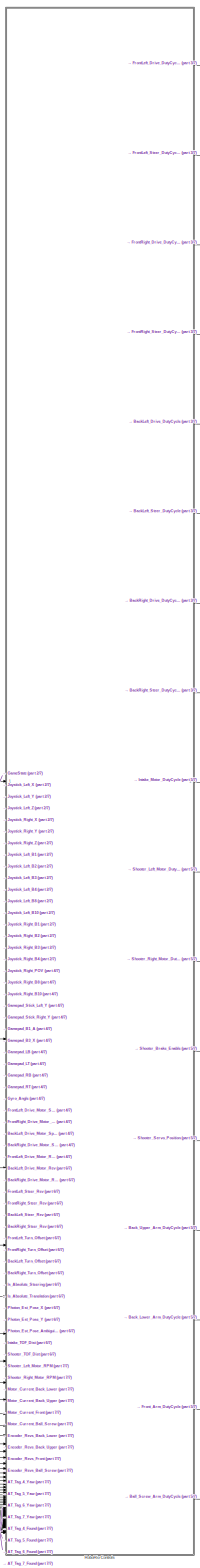
[diagram: root canvas - part 1/7, center side, full height]
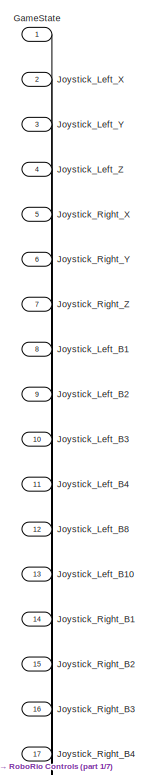
[diagram: root canvas - part 2/7, top left region]
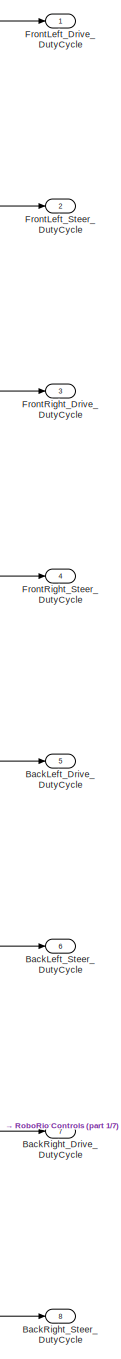
[diagram: root canvas - part 3/7, top right region]
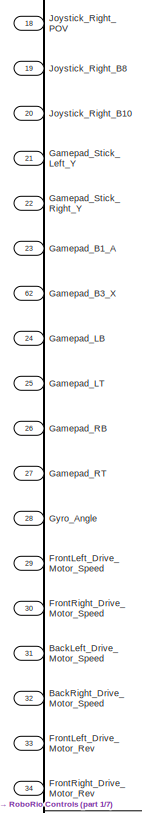
[diagram: root canvas - part 4/7, middle left region]
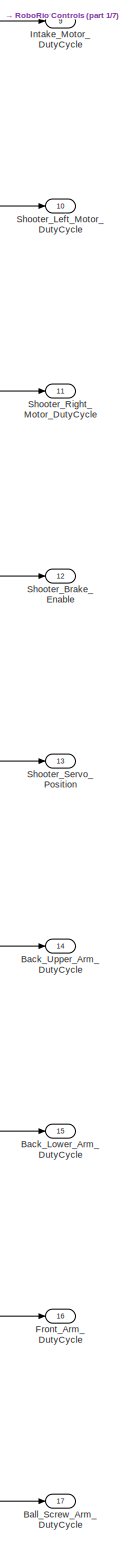
[diagram: root canvas - part 5/7, bottom right region]
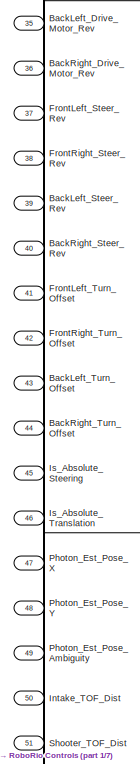
[diagram: root canvas - part 6/7, middle left region]
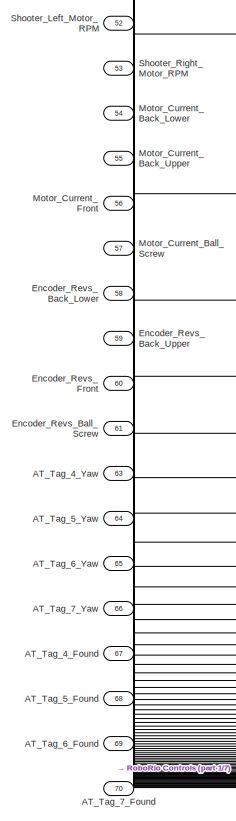
[diagram: root canvas - part 7/7, bottom left region]
MODEL slx_de5d0584c826
KIND model
CONFIG AbsTol = auto
CONFIG EnableMultiTasking = off
CONFIG FixedStep = t_sample
CONFIG MaxStep = auto
CONFIG MinStep = auto
CONFIG RelTol = 1e-3
CONFIG SampleTimeConstraint = Unconstrained
CONFIG SolverName = FixedStepDiscrete
CONFIG StartTime = 0.0
CONFIG StopTime = inf
BLOCK [Inport] AT_Tag_4_Found
  Port = 67
BLOCK [Inport] AT_Tag_4_Yaw
  Port = 63
BLOCK [Inport] AT_Tag_5_Found
  Port = 68
BLOCK [Inport] AT_Tag_5_Yaw
  Port = 64
BLOCK [Inport] AT_Tag_6_Found
  Port = 69
BLOCK [Inport] AT_Tag_6_Yaw
  Port = 65
BLOCK [Inport] AT_Tag_7_Found
  Port = 70
BLOCK [Inport] AT_Tag_7_Yaw
  Port = 66
BLOCK [Outport] BackLeft_Drive_DutyCycle
  Port = 5
BLOCK [Inport] BackLeft_Drive_Motor_Rev
  Port = 35
BLOCK [Inport] BackLeft_Drive_Motor_Speed
  Port = 31
BLOCK [Outport] BackLeft_Steer_DutyCycle
  Port = 6
BLOCK [Inport] BackLeft_Steer_Rev
  Port = 39
BLOCK [Inport] BackLeft_Turn_Offset
  Port = 43
BLOCK [Outport] BackRight_Drive_DutyCycle
  Port = 7
BLOCK [Inport] BackRight_Drive_Motor_Rev
  Port = 36
BLOCK [Inport] BackRight_Drive_Motor_Speed
  Port = 32
BLOCK [Outport] BackRight_Steer_DutyCycle
  Port = 8
BLOCK [Inport] BackRight_Steer_Rev
  Port = 40
BLOCK [Inport] BackRight_Turn_Offset
  Port = 44
BLOCK [Outport] Back_Lower_Arm_DutyCycle
  Port = 15
BLOCK [Outport] Back_Upper_Arm_DutyCycle
  Port = 14
BLOCK [Outport] Ball_Screw_Arm_DutyCycle
  Port = 17
BLOCK [Inport] Encoder_Revs_Back_Lower
  Port = 58
BLOCK [Inport] Encoder_Revs_Back_Upper
  Port = 59
BLOCK [Inport] Encoder_Revs_Ball_Screw
  Port = 61
BLOCK [Inport] Encoder_Revs_Front
  Port = 60
BLOCK [Outport] FrontLeft_Drive_DutyCycle
BLOCK [Inport] FrontLeft_Drive_Motor_Rev
  Port = 33
BLOCK [Inport] FrontLeft_Drive_Motor_Speed
  Port = 29
BLOCK [Outport] FrontLeft_Steer_DutyCycle
  Port = 2
BLOCK [Inport] FrontLeft_Steer_Rev
  Port = 37
BLOCK [Inport] FrontLeft_Turn_Offset
  Port = 41
BLOCK [Outport] FrontRight_Drive_DutyCycle
  Port = 3
BLOCK [Inport] FrontRight_Drive_Motor_Rev
  Port = 34
BLOCK [Inport] FrontRight_Drive_Motor_Speed
  Port = 30
BLOCK [Outport] FrontRight_Steer_DutyCycle
  Port = 4
BLOCK [Inport] FrontRight_Steer_Rev
  Port = 38
BLOCK [Inport] FrontRight_Turn_Offset
  Port = 42
BLOCK [Outport] Front_Arm_DutyCycle
  Port = 16
BLOCK [Inport] GameState
BLOCK [Inport] Gamepad_B1_A
  Port = 23
BLOCK [Inport] Gamepad_B3_X
  Port = 62
BLOCK [Inport] Gamepad_LB
  Port = 24
BLOCK [Inport] Gamepad_LT
  Port = 25
BLOCK [Inport] Gamepad_RB
  Port = 26
BLOCK [Inport] Gamepad_RT
  Port = 27
BLOCK [Inport] Gamepad_Stick_Left_Y
  Port = 21
BLOCK [Inport] Gamepad_Stick_Right_Y
  Port = 22
BLOCK [Inport] Gyro_Angle
  Port = 28
BLOCK [Outport] Intake_Motor_DutyCycle
  Port = 9
BLOCK [Inport] Intake_TOF_Dist
  Port = 50
BLOCK [Inport] Is_Absolute_Steering
  Port = 45
BLOCK [Inport] Is_Absolute_Translation
  Port = 46
BLOCK [Inport] Joystick_Left_B1
  Port = 8
BLOCK [Inport] Joystick_Left_B10
  Port = 13
BLOCK [Inport] Joystick_Left_B2
  Port = 9
BLOCK [Inport] Joystick_Left_B3
  Port = 10
BLOCK [Inport] Joystick_Left_B4
  Port = 11
BLOCK [Inport] Joystick_Left_B8
  Port = 12
BLOCK [Inport] Joystick_Left_X
  Port = 2
BLOCK [Inport] Joystick_Left_Y
  Port = 3
BLOCK [Inport] Joystick_Left_Z
  Port = 4
BLOCK [Inport] Joystick_Right_B1
  Port = 14
BLOCK [Inport] Joystick_Right_B10
  Port = 20
BLOCK [Inport] Joystick_Right_B2
  Port = 15
BLOCK [Inport] Joystick_Right_B3
  Port = 16
BLOCK [Inport] Joystick_Right_B4
  Port = 17
BLOCK [Inport] Joystick_Right_B8
  Port = 19
BLOCK [Inport] Joystick_Right_POV
  Port = 18
BLOCK [Inport] Joystick_Right_X
  Port = 5
BLOCK [Inport] Joystick_Right_Y
  Port = 6
BLOCK [Inport] Joystick_Right_Z
  Port = 7
BLOCK [Inport] Motor_Current_Back_Lower
  Port = 54
BLOCK [Inport] Motor_Current_Back_Upper
  Port = 55
BLOCK [Inport] Motor_Current_Ball_Screw
  Port = 57
BLOCK [Inport] Motor_Current_Front
  Port = 56
BLOCK [Inport] Photon_Est_Pose_Ambiguity
  Port = 49
BLOCK [Inport] Photon_Est_Pose_X
  Port = 47
BLOCK [Inport] Photon_Est_Pose_Y
  Port = 48
BLOCK [SubSystem] RoboRio Controls
  ReferencedSubsystem = RoboRio_Controls_sub
BLOCK [Outport] Shooter_Brake_Enable
  Port = 12
BLOCK [Outport] Shooter_Left_Motor_DutyCycle
  Port = 10
BLOCK [Inport] Shooter_Left_Motor_RPM
  Port = 52
BLOCK [Outport] Shooter_Right_Motor_DutyCycle
  Port = 11
BLOCK [Inport] Shooter_Right_Motor_RPM
  Port = 53
BLOCK [Outport] Shooter_Servo_Position
  Port = 13
BLOCK [Inport] Shooter_TOF_Dist
  Port = 51
LINE AT_Tag_4_Found:1 -> RoboRio Controls:67
LINE AT_Tag_4_Yaw:1 -> RoboRio Controls:63
LINE AT_Tag_5_Found:1 -> RoboRio Controls:68
LINE AT_Tag_5_Yaw:1 -> RoboRio Controls:64
LINE AT_Tag_6_Found:1 -> RoboRio Controls:69
LINE AT_Tag_6_Yaw:1 -> RoboRio Controls:65
LINE AT_Tag_7_Found:1 -> RoboRio Controls:70
LINE AT_Tag_7_Yaw:1 -> RoboRio Controls:66
LINE BackLeft_Drive_Motor_Rev:1 -> RoboRio Controls:36
LINE BackLeft_Drive_Motor_Speed:1 -> RoboRio Controls:32
LINE BackLeft_Steer_Rev:1 -> RoboRio Controls:40
LINE BackLeft_Turn_Offset:1 -> RoboRio Controls:44
LINE BackRight_Drive_Motor_Rev:1 -> RoboRio Controls:37
LINE BackRight_Drive_Motor_Speed:1 -> RoboRio Controls:33
LINE BackRight_Steer_Rev:1 -> RoboRio Controls:41
LINE BackRight_Turn_Offset:1 -> RoboRio Controls:45
LINE Encoder_Revs_Back_Lower:1 -> RoboRio Controls:59
LINE Encoder_Revs_Back_Upper:1 -> RoboRio Controls:60
LINE Encoder_Revs_Ball_Screw:1 -> RoboRio Controls:62
LINE Encoder_Revs_Front:1 -> RoboRio Controls:61
LINE FrontLeft_Drive_Motor_Rev:1 -> RoboRio Controls:34
LINE FrontLeft_Drive_Motor_Speed:1 -> RoboRio Controls:30
LINE FrontLeft_Steer_Rev:1 -> RoboRio Controls:38
LINE FrontLeft_Turn_Offset:1 -> RoboRio Controls:42
LINE FrontRight_Drive_Motor_Rev:1 -> RoboRio Controls:35
LINE FrontRight_Drive_Motor_Speed:1 -> RoboRio Controls:31
LINE FrontRight_Steer_Rev:1 -> RoboRio Controls:39
LINE FrontRight_Turn_Offset:1 -> RoboRio Controls:43
LINE GameState:1 -> RoboRio Controls:1
LINE Gamepad_B1_A:1 -> RoboRio Controls:23
LINE Gamepad_B3_X:1 -> RoboRio Controls:24
LINE Gamepad_LB:1 -> RoboRio Controls:25
LINE Gamepad_LT:1 -> RoboRio Controls:26
LINE Gamepad_RB:1 -> RoboRio Controls:27
LINE Gamepad_RT:1 -> RoboRio Controls:28
LINE Gamepad_Stick_Left_Y:1 -> RoboRio Controls:21
LINE Gamepad_Stick_Right_Y:1 -> RoboRio Controls:22
LINE Gyro_Angle:1 -> RoboRio Controls:29
LINE Intake_TOF_Dist:1 -> RoboRio Controls:51
LINE Is_Absolute_Steering:1 -> RoboRio Controls:46
LINE Is_Absolute_Translation:1 -> RoboRio Controls:47
LINE Joystick_Left_B10:1 -> RoboRio Controls:13
LINE Joystick_Left_B1:1 -> RoboRio Controls:8
LINE Joystick_Left_B2:1 -> RoboRio Controls:9
LINE Joystick_Left_B3:1 -> RoboRio Controls:10
LINE Joystick_Left_B4:1 -> RoboRio Controls:11
LINE Joystick_Left_B8:1 -> RoboRio Controls:12
LINE Joystick_Left_X:1 -> RoboRio Controls:2
LINE Joystick_Left_Y:1 -> RoboRio Controls:3
LINE Joystick_Left_Z:1 -> RoboRio Controls:4
LINE Joystick_Right_B10:1 -> RoboRio Controls:20
LINE Joystick_Right_B1:1 -> RoboRio Controls:14
LINE Joystick_Right_B2:1 -> RoboRio Controls:15
LINE Joystick_Right_B3:1 -> RoboRio Controls:16
LINE Joystick_Right_B4:1 -> RoboRio Controls:17
LINE Joystick_Right_B8:1 -> RoboRio Controls:19
LINE Joystick_Right_POV:1 -> RoboRio Controls:18
LINE Joystick_Right_X:1 -> RoboRio Controls:5
LINE Joystick_Right_Y:1 -> RoboRio Controls:6
LINE Joystick_Right_Z:1 -> RoboRio Controls:7
LINE Motor_Current_Back_Lower:1 -> RoboRio Controls:55
LINE Motor_Current_Back_Upper:1 -> RoboRio Controls:56
LINE Motor_Current_Ball_Screw:1 -> RoboRio Controls:58
LINE Motor_Current_Front:1 -> RoboRio Controls:57
LINE Photon_Est_Pose_Ambiguity:1 -> RoboRio Controls:50
LINE Photon_Est_Pose_X:1 -> RoboRio Controls:48
LINE Photon_Est_Pose_Y:1 -> RoboRio Controls:49
LINE RoboRio Controls:1 -> FrontLeft_Drive_DutyCycle:1
LINE RoboRio Controls:10 -> Shooter_Left_Motor_DutyCycle:1
LINE RoboRio Controls:11 -> Shooter_Right_Motor_DutyCycle:1
LINE RoboRio Controls:12 -> Shooter_Brake_Enable:1
LINE RoboRio Controls:13 -> Shooter_Servo_Position:1
LINE RoboRio Controls:14 -> Back_Upper_Arm_DutyCycle:1
LINE RoboRio Controls:15 -> Back_Lower_Arm_DutyCycle:1
LINE RoboRio Controls:16 -> Front_Arm_DutyCycle:1
LINE RoboRio Controls:17 -> Ball_Screw_Arm_DutyCycle:1
LINE RoboRio Controls:2 -> FrontLeft_Steer_DutyCycle:1
LINE RoboRio Controls:3 -> FrontRight_Drive_DutyCycle:1
LINE RoboRio Controls:4 -> FrontRight_Steer_DutyCycle:1
LINE RoboRio Controls:5 -> BackLeft_Drive_DutyCycle:1
LINE RoboRio Controls:6 -> BackLeft_Steer_DutyCycle:1
LINE RoboRio Controls:7 -> BackRight_Drive_DutyCycle:1
LINE RoboRio Controls:8 -> BackRight_Steer_DutyCycle:1
LINE RoboRio Controls:9 -> Intake_Motor_DutyCycle:1
LINE Shooter_Left_Motor_RPM:1 -> RoboRio Controls:53
LINE Shooter_Right_Motor_RPM:1 -> RoboRio Controls:54
LINE Shooter_TOF_Dist:1 -> RoboRio Controls:52
